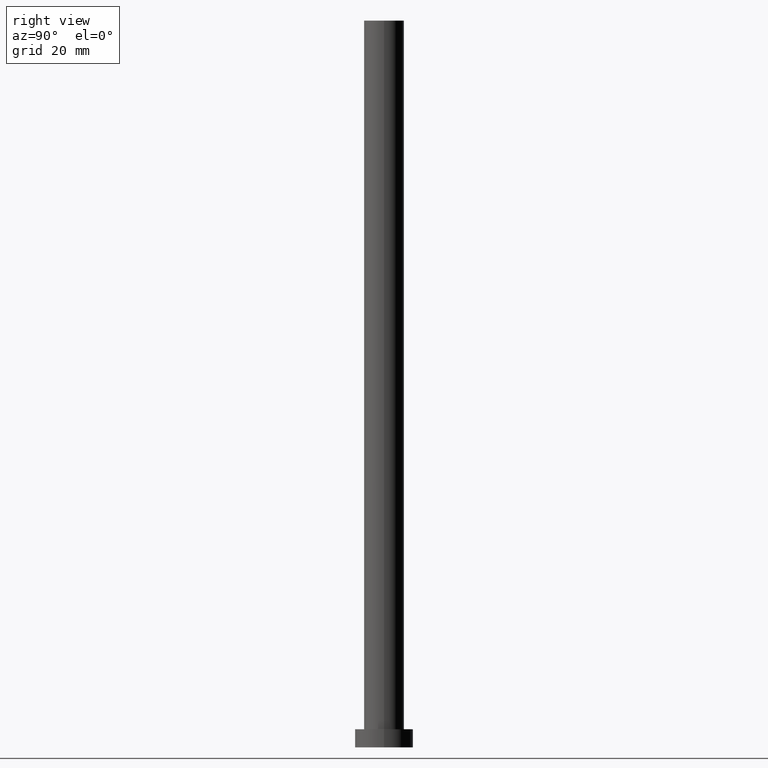
[diagram: clean part render]
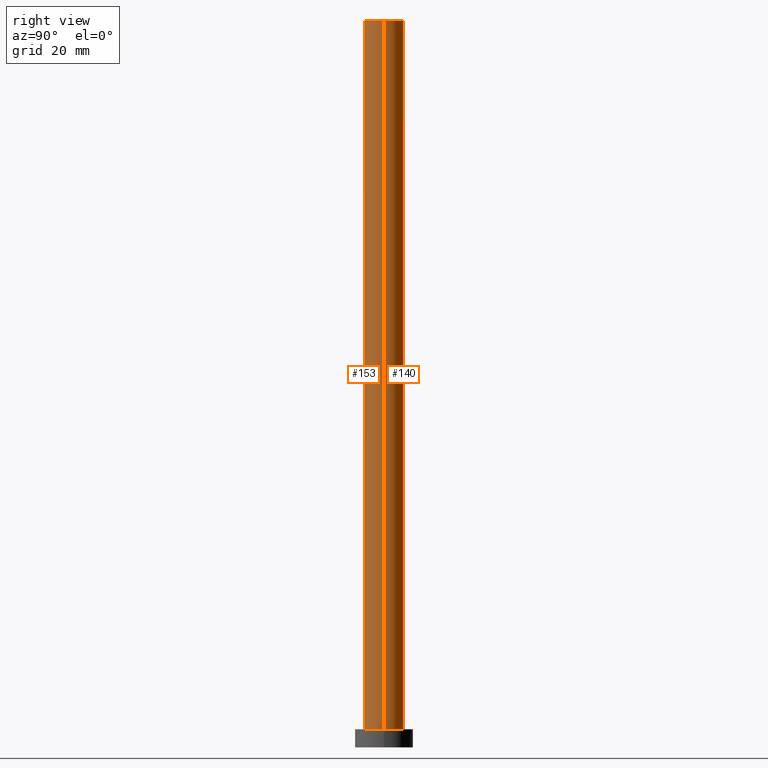
[diagram: same view with one multi-face feature highlighted, each face labeled with its STEP entity id]
A machine part, right view. The highlighted faces form ONE feature: a constant-radius fillet chain: 2 tangent blend faces with common blend radius 5.5 mm. The faces share edges in the B-rep.
Their STEP definitions:
[1] entity #153 (Cylinder):
#1 = CARTESIAN_POINT ( 'NONE',  ( -5.500000000000000000, 0.000000000000000000, 200.0000000000000000 ) ) ;
#2 = CARTESIAN_POINT ( 'NONE',  ( -5.500000000000000000, 0.000000000000000000, 200.0000000000000000 ) ) ;
#5 = VERTEX_POINT ( 'NONE', #27 ) ;
#16 = DIRECTION ( 'NONE',  ( -0.000000000000000000, -0.000000000000000000, -1.000000000000000000 ) ) ;
#17 = AXIS2_PLACEMENT_3D ( 'NONE', #94, #76, #239 ) ;
#27 = CARTESIAN_POINT ( 'NONE',  ( -5.500000000000000000, 0.000000000000000000, 5.000000000000000000 ) ) ;
#37 = FACE_OUTER_BOUND ( 'NONE', #69, .T. ) ;
#38 = DIRECTION ( 'NONE',  ( -0.000000000000000000, -0.000000000000000000, -1.000000000000000000 ) ) ;
#43 = ORIENTED_EDGE ( 'NONE', *, *, #128, .F. ) ;
#51 = DIRECTION ( 'NONE',  ( 0.000000000000000000, 0.000000000000000000, 1.000000000000000000 ) ) ;
#54 = CARTESIAN_POINT ( 'NONE',  ( 5.500000000000000000, 6.735557395310442023E-16, 200.0000000000000000 ) ) ;
#56 = VECTOR ( 'NONE', #16, 1000.000000000000000 ) ;
#58 = EDGE_CURVE ( 'NONE', #5, #158, #227, .T. ) ;
#69 = EDGE_LOOP ( 'NONE', ( #229, #43, #107, #135 ) ) ;
#70 = DIRECTION ( 'NONE',  ( 0.000000000000000000, 0.000000000000000000, 1.000000000000000000 ) ) ;
#71 = VECTOR ( 'NONE', #38, 1000.000000000000000 ) ;
#76 = DIRECTION ( 'NONE',  ( -0.000000000000000000, -0.000000000000000000, -1.000000000000000000 ) ) ;
#91 = CARTESIAN_POINT ( 'NONE',  ( 0.000000000000000000, 0.000000000000000000, 5.000000000000000000 ) ) ;
#94 = CARTESIAN_POINT ( 'NONE',  ( 0.000000000000000000, 0.000000000000000000, 200.0000000000000000 ) ) ;
#107 = ORIENTED_EDGE ( 'NONE', *, *, #246, .T. ) ;
#113 = LINE ( 'NONE', #2, #71 ) ;
#124 = CARTESIAN_POINT ( 'NONE',  ( 0.000000000000000000, 0.000000000000000000, 200.0000000000000000 ) ) ;
#127 = CARTESIAN_POINT ( 'NONE',  ( 5.500000000000000000, 6.735557395310442023E-16, 200.0000000000000000 ) ) ;
#128 = EDGE_CURVE ( 'NONE', #206, #221, #251, .T. ) ;
#130 = CARTESIAN_POINT ( 'NONE',  ( 5.500000000000000000, 6.735557395310442023E-16, 5.000000000000000000 ) ) ;
#132 = AXIS2_PLACEMENT_3D ( 'NONE', #124, #70, #146 ) ;
#135 = ORIENTED_EDGE ( 'NONE', *, *, #58, .T. ) ;
#143 = EDGE_CURVE ( 'NONE', #221, #158, #233, .T. ) ;
#146 = DIRECTION ( 'NONE',  ( 1.000000000000000000, 0.000000000000000000, 0.000000000000000000 ) ) ;
#153 = ADVANCED_FACE ( 'NONE', ( #37 ), #191, .T. ) ;
#158 = VERTEX_POINT ( 'NONE', #130 ) ;
#166 = DIRECTION ( 'NONE',  ( 1.000000000000000000, 0.000000000000000000, 0.000000000000000000 ) ) ;
#191 = CYLINDRICAL_SURFACE ( 'NONE', #17, 5.500000000000000000 ) ;
#206 = VERTEX_POINT ( 'NONE', #1 ) ;
#221 = VERTEX_POINT ( 'NONE', #127 ) ;
#227 = CIRCLE ( 'NONE', #237, 5.500000000000000000 ) ;
#229 = ORIENTED_EDGE ( 'NONE', *, *, #143, .F. ) ;
#233 = LINE ( 'NONE', #54, #56 ) ;
#237 = AXIS2_PLACEMENT_3D ( 'NONE', #91, #51, #166 ) ;
#239 = DIRECTION ( 'NONE',  ( -1.000000000000000000, 0.000000000000000000, 0.000000000000000000 ) ) ;
#246 = EDGE_CURVE ( 'NONE', #206, #5, #113, .T. ) ;
#251 = CIRCLE ( 'NONE', #132, 5.500000000000000000 ) ;
[2] entity #140 (Cylinder):
#1 = CARTESIAN_POINT ( 'NONE',  ( -5.500000000000000000, 0.000000000000000000, 200.0000000000000000 ) ) ;
#2 = CARTESIAN_POINT ( 'NONE',  ( -5.500000000000000000, 0.000000000000000000, 200.0000000000000000 ) ) ;
#5 = VERTEX_POINT ( 'NONE', #27 ) ;
#7 = EDGE_LOOP ( 'NONE', ( #25, #179, #118, #79 ) ) ;
#11 = CARTESIAN_POINT ( 'NONE',  ( 0.000000000000000000, 0.000000000000000000, 200.0000000000000000 ) ) ;
#13 = CARTESIAN_POINT ( 'NONE',  ( 0.000000000000000000, 0.000000000000000000, 200.0000000000000000 ) ) ;
#14 = EDGE_CURVE ( 'NONE', #158, #5, #30, .T. ) ;
#16 = DIRECTION ( 'NONE',  ( -0.000000000000000000, -0.000000000000000000, -1.000000000000000000 ) ) ;
#25 = ORIENTED_EDGE ( 'NONE', *, *, #78, .F. ) ;
#27 = CARTESIAN_POINT ( 'NONE',  ( -5.500000000000000000, 0.000000000000000000, 5.000000000000000000 ) ) ;
#28 = FACE_OUTER_BOUND ( 'NONE', #7, .T. ) ;
#30 = CIRCLE ( 'NONE', #168, 5.500000000000000000 ) ;
#38 = DIRECTION ( 'NONE',  ( -0.000000000000000000, -0.000000000000000000, -1.000000000000000000 ) ) ;
#54 = CARTESIAN_POINT ( 'NONE',  ( 5.500000000000000000, 6.735557395310442023E-16, 200.0000000000000000 ) ) ;
#56 = VECTOR ( 'NONE', #16, 1000.000000000000000 ) ;
#71 = VECTOR ( 'NONE', #38, 1000.000000000000000 ) ;
#78 = EDGE_CURVE ( 'NONE', #221, #206, #82, .T. ) ;
#79 = ORIENTED_EDGE ( 'NONE', *, *, #246, .F. ) ;
#82 = CIRCLE ( 'NONE', #231, 5.500000000000000000 ) ;
#87 = CYLINDRICAL_SURFACE ( 'NONE', #181, 5.500000000000000000 ) ;
#113 = LINE ( 'NONE', #2, #71 ) ;
#118 = ORIENTED_EDGE ( 'NONE', *, *, #14, .T. ) ;
#123 = DIRECTION ( 'NONE',  ( 1.000000000000000000, 0.000000000000000000, 0.000000000000000000 ) ) ;
#125 = DIRECTION ( 'NONE',  ( 1.000000000000000000, 0.000000000000000000, 0.000000000000000000 ) ) ;
#127 = CARTESIAN_POINT ( 'NONE',  ( 5.500000000000000000, 6.735557395310442023E-16, 200.0000000000000000 ) ) ;
#130 = CARTESIAN_POINT ( 'NONE',  ( 5.500000000000000000, 6.735557395310442023E-16, 5.000000000000000000 ) ) ;
#140 = ADVANCED_FACE ( 'NONE', ( #28 ), #87, .T. ) ;
#142 = DIRECTION ( 'NONE',  ( 0.000000000000000000, 0.000000000000000000, 1.000000000000000000 ) ) ;
#143 = EDGE_CURVE ( 'NONE', #221, #158, #233, .T. ) ;
#158 = VERTEX_POINT ( 'NONE', #130 ) ;
#164 = DIRECTION ( 'NONE',  ( -0.000000000000000000, -0.000000000000000000, -1.000000000000000000 ) ) ;
#165 = CARTESIAN_POINT ( 'NONE',  ( 0.000000000000000000, 0.000000000000000000, 5.000000000000000000 ) ) ;
#168 = AXIS2_PLACEMENT_3D ( 'NONE', #165, #142, #123 ) ;
#179 = ORIENTED_EDGE ( 'NONE', *, *, #143, .T. ) ;
#181 = AXIS2_PLACEMENT_3D ( 'NONE', #11, #164, #249 ) ;
#206 = VERTEX_POINT ( 'NONE', #1 ) ;
#221 = VERTEX_POINT ( 'NONE', #127 ) ;
#231 = AXIS2_PLACEMENT_3D ( 'NONE', #13, #247, #125 ) ;
#233 = LINE ( 'NONE', #54, #56 ) ;
#246 = EDGE_CURVE ( 'NONE', #206, #5, #113, .T. ) ;
#247 = DIRECTION ( 'NONE',  ( 0.000000000000000000, 0.000000000000000000, 1.000000000000000000 ) ) ;
#249 = DIRECTION ( 'NONE',  ( -1.000000000000000000, 0.000000000000000000, 0.000000000000000000 ) ) ;